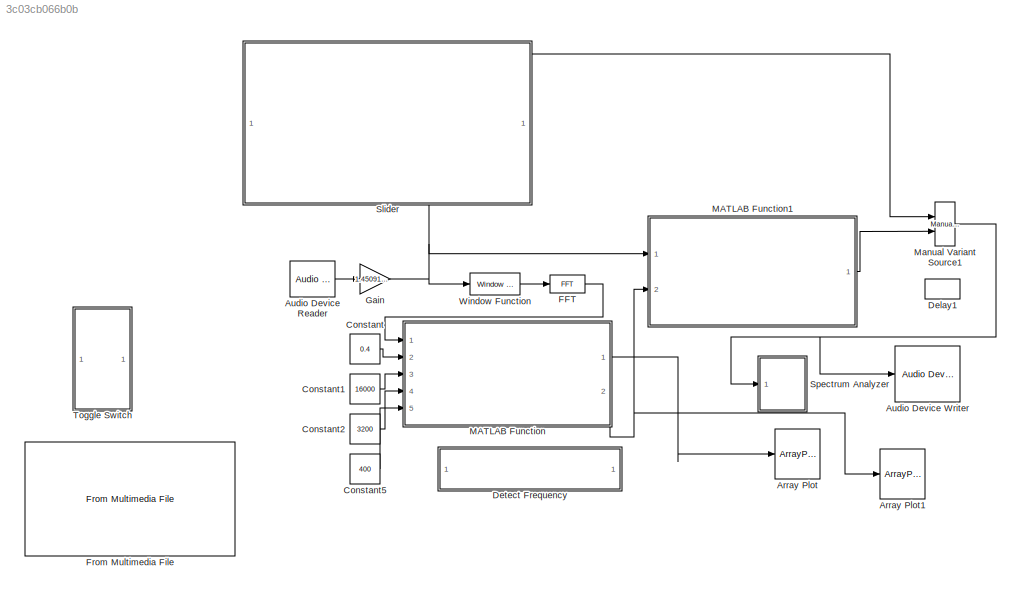
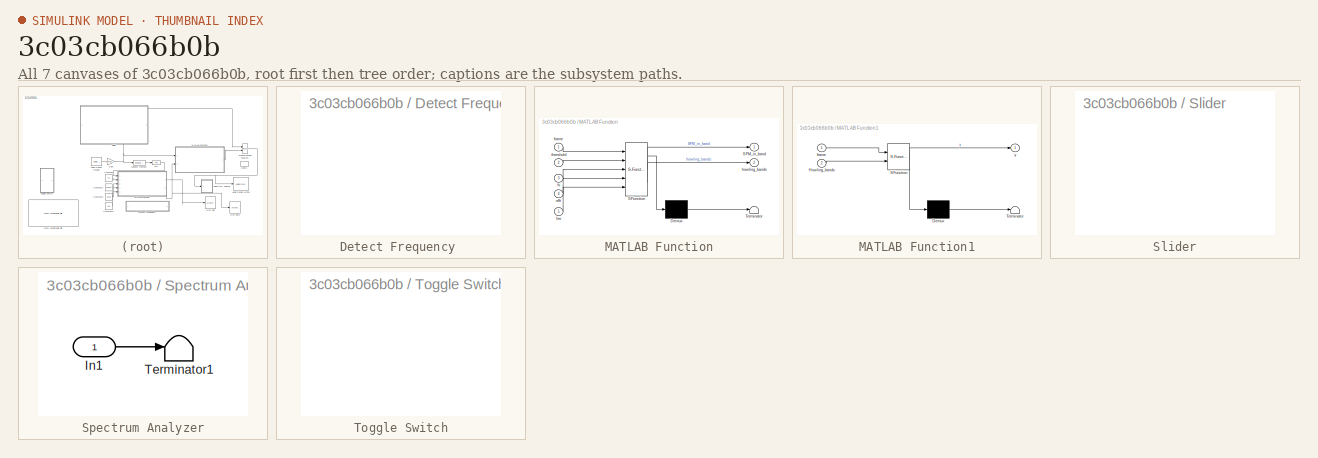
[diagram: thumbnail index - all 7 canvases of the model, root first then tree order]
MODEL slx_3c03cb066b0b
KIND model
CONFIG AbsTol = auto
CONFIG EnableMultiTasking = off
CONFIG FixedStep = auto
CONFIG MaxStep = auto
CONFIG MinStep = auto
CONFIG RelTol = 1e-3
CONFIG SampleTimeConstraint = Unconstrained
CONFIG Solver = FixedStepDiscrete
CONFIG SolverName = FixedStepDiscrete
CONFIG StartTime = 0.0
CONFIG StopTime = inf
BLOCK [ArrayPlot] Array Plot
  DefaultConfigurationName = dsp.scopes.ArrayPlotBlockSpecification
  Ports = [1]
  ScopeSpecificationString = dsp.scopes.ArrayPlotBlockSpecification('CurrentConfiguration', extmgr.ConfigurationSet(extmgr.Configuration('Core','General UI',true,'FigureColor',[0.15686     0.15686     0.15686]),extmgr.Configuration('Visuals','Array Plot',true,'SerializedDisplays',{struct('XLabel','','Title','','YLabelReal','Amplitude','MinYLimReal','0','MaxYLimReal','1','XGrid', true,'YGrid', true,'LegendVisibility','off','Pl...<+1012ch>
BLOCK [ArrayPlot] Array Plot1
  DefaultConfigurationName = dsp.scopes.ArrayPlotBlockSpecification
  Ports = [1]
  ScopeSpecificationString = dsp.scopes.ArrayPlotBlockSpecification('CurrentConfiguration', extmgr.ConfigurationSet(extmgr.Configuration('Core','General UI',true,'FigureColor',[0.15686     0.15686     0.15686]),extmgr.Configuration('Visuals','Array Plot',true,'SerializedDisplays',{struct('XLabel','','Title','','YLabelReal','Amplitude','MinYLimReal','-0.125','MaxYLimReal','1.125','XGrid', true,'YGrid', true,'LegendVisibility',...<+1024ch>
BLOCK [Reference] Audio Device Reader  REF=audiosources/Audio Device
Reader
  Ports = [0, 1]
  SourceBlock = audiosources/Audio Device\nReader
  SourceType = Audio Device Reader
BLOCK [Reference] Audio Device Writer  REF=dspsnks4/Audio Device
Writer
  Ports = [1]
  SourceBlock = dspsnks4/Audio Device\nWriter
  SourceType = Audio Device Writer
BLOCK [Constant] Constant
  Value = 0.4
BLOCK [Constant] Constant1
  Value = 16000
BLOCK [Constant] Constant2
  Value = 3200
BLOCK [Constant] Constant5
  Value = 400
BLOCK [Delay] Delay1
  DelayLength = 1
  InitialCondition = 0
  InputPortMap = u0
  Ports = [1, 1]
BLOCK [SubSystem] Detect Frequency 
  Description = Replaced Block
  Ports = []
BLOCK [Reference] FFT  REF=dspxfrm3/FFT
  Ports = [1, 1]
  SourceBlock = dspxfrm3/FFT
  SourceType = FFT
BLOCK [Reference] From Multimedia File  REF=dspvision/From Multimedia File
  Ports = [0, 1]
  SourceBlock = dspvision/From Multimedia File
  SourceType = From Multimedia File
BLOCK [Gain] Gain
  Gain = 1.450910931174089
  Multiplication = Matrix(K*u)
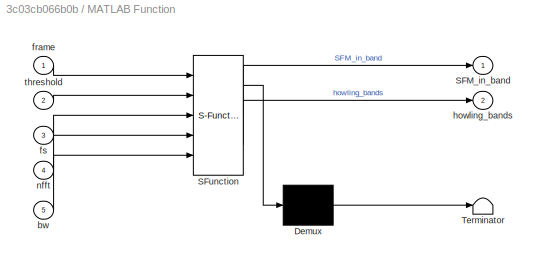
BLOCK [SubSystem] MATLAB Function
  ErrorFcn = Stateflow.Translate.translate
  PermitHierarchicalResolution = ExplicitOnly
  Ports = [5, 2]
  SFBlockType = MATLAB Function
  TreatAsAtomicUnit = on
BLOCK [Demux] MATLAB Function/ Demux 
  Outputs = 1
  Ports = [1, 1]
BLOCK [S-Function] MATLAB Function/ SFunction 
  EnableBusSupport = on
  FunctionName = sf_sfun
  PortCounts = [5 3]
  Ports = [5, 3]
  SFcnIsStateOwnerBlock = off
  SFunctionDeploymentMode = off
  Tag = Stateflow S-Function SFM_simulink_16kfs_2017a 2
BLOCK [Terminator] MATLAB Function/ Terminator 
BLOCK [Outport] MATLAB Function/SFM_in_band
BLOCK [Inport] MATLAB Function/bw
  Port = 5
BLOCK [Inport] MATLAB Function/frame
BLOCK [Inport] MATLAB Function/fs
  Port = 3
BLOCK [Outport] MATLAB Function/howling_bands
  Port = 2
BLOCK [Inport] MATLAB Function/nfft
  Port = 4
BLOCK [Inport] MATLAB Function/threshold
  Port = 2
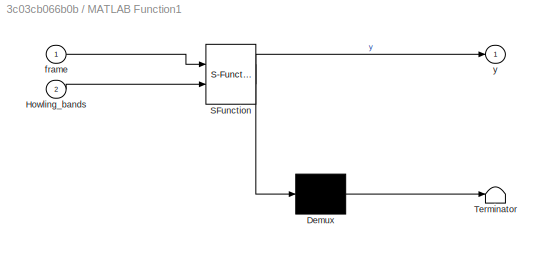
BLOCK [SubSystem] MATLAB Function1
  ErrorFcn = Stateflow.Translate.translate
  PermitHierarchicalResolution = ExplicitOnly
  Ports = [2, 1]
  SFBlockType = MATLAB Function
  TreatAsAtomicUnit = on
BLOCK [Demux] MATLAB Function1/ Demux 
  Outputs = 1
  Ports = [1, 1]
BLOCK [S-Function] MATLAB Function1/ SFunction 
  EnableBusSupport = on
  FunctionName = sf_sfun
  PortCounts = [2 2]
  Ports = [2, 2]
  SFcnIsStateOwnerBlock = off
  SFunctionDeploymentMode = off
  Tag = Stateflow S-Function SFM_simulink_16kfs_2017a 1
BLOCK [Terminator] MATLAB Function1/ Terminator 
BLOCK [Inport] MATLAB Function1/Howling_bands
  Port = 2
BLOCK [Inport] MATLAB Function1/frame
BLOCK [Outport] MATLAB Function1/y
BLOCK [Reference] Manual Variant Source1  REF=simulink/Signal
Routing/Manual
Variant Source
  Ports = [2, 1]
  SourceBlock = simulink/Signal\nRouting/Manual\nVariant Source
  SourceType = ManualVariantSource
BLOCK [SubSystem] Slider
  DialogController = hmiCreateDDGDialog
  IsWebBlock = on
  Ports = []
BLOCK [SubSystem] Spectrum Analyzer
  Description = Replaced Block
  Ports = [1]
BLOCK [Inport] Spectrum Analyzer/In1
BLOCK [Terminator] Spectrum Analyzer/Terminator1
BLOCK [SubSystem] Toggle Switch
  DialogController = hmiCreateDDGDialog
  IsWebBlock = on
  Ports = []
BLOCK [Reference] Window Function  REF=dspsigops/Window
Function
  Ports = [1, 1]
  SourceBlock = dspsigops/Window\nFunction
  SourceType = Window Function
LINE Audio Device Reader:1 -> Gain:1
LINE Constant1:1 -> MATLAB Function:3
LINE Constant2:1 -> MATLAB Function:4
LINE Constant5:1 -> MATLAB Function:5
LINE Constant:1 -> MATLAB Function:2
LINE FFT:1 -> MATLAB Function:1
NET Gain:1 -> MATLAB Function1:1, Manual Variant Source1:1, Window Function:1
LINE MATLAB Function1:1 -> Manual Variant Source1:2
LINE MATLAB Function:1 -> Array Plot:1
NET MATLAB Function:2 -> Array Plot1:1, MATLAB Function1:2
NET Manual Variant Source1:1 -> Audio Device Writer:1, Spectrum Analyzer:1
LINE Spectrum Analyzer/In1:1 -> Spectrum Analyzer/Terminator1:1
LINE Window Function:1 -> FFT:1
note: NET lines group one-source signal fan-out (src -> all destinations, sorted); 1:1 wires keep LINE
CHART MATLAB Function1 states=1 transitions=1
  STATE_LABEL 'eML_blk_kernel()'
  STATE_LABEL 'SCRIPT:\n%% EQ\n\nfunction y = Bands_howling_suppression(frame, Howling_bands)\n% Suppress howling noise in signal by attenuating frequency bands\n% specified in SFM_in_band.\nfs = 16000;  % Sampling frequency in Hz\nnfft = 3200;  % FFT length\n% frame = fft(signal, nfft);  % Compute spectrum of signal\n\nf_center = [36.1767908943890\t47.7165473068120\t62.9372819034748\t83.0131616172483\t109.492891864320\t144.41...<+3608ch>'
CHART MATLAB Function states=1 transitions=1
  STATE_LABEL 'eML_blk_kernel()'
  STATE_LABEL 'SCRIPT:\nfunction [SFM_in_band,howling_bands] = SFM_howling_detection(frame,threshold,fs,nfft,bw)\n% Args:\n%   - frame: Spectrum of one frame. The frequency range should be between\n%     0 and fs/2 Hz, with a total of nfft/2 frequency bins.\n%   - threshold: SFM threshold value for howling detection.\n%   - fs: Sampling frequency in Hz.\n%   - nfft: FFT length.\n%   - bw: Bandwidth of each frequency ban...<+3608ch>'
